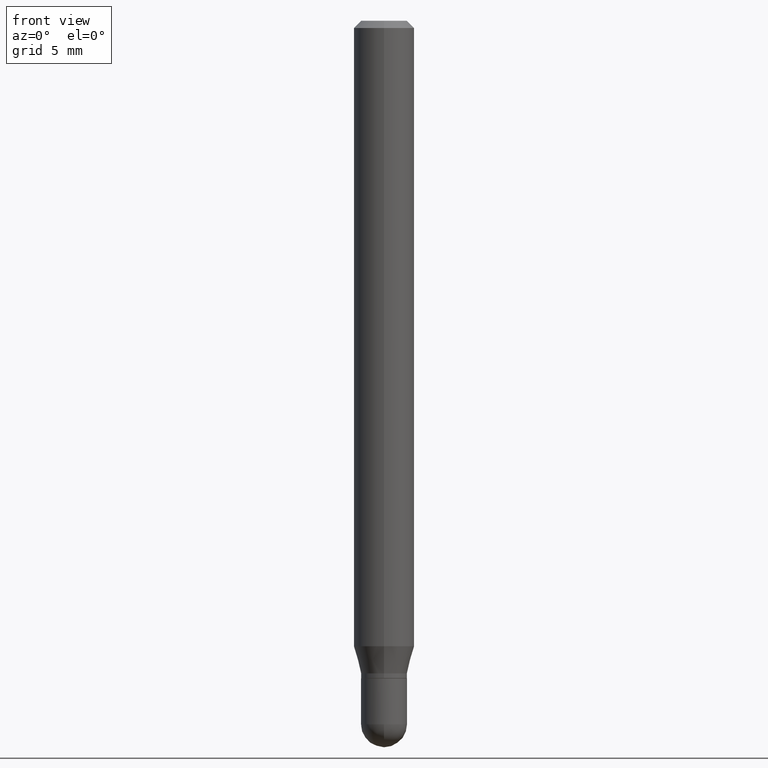
[diagram: clean part render]
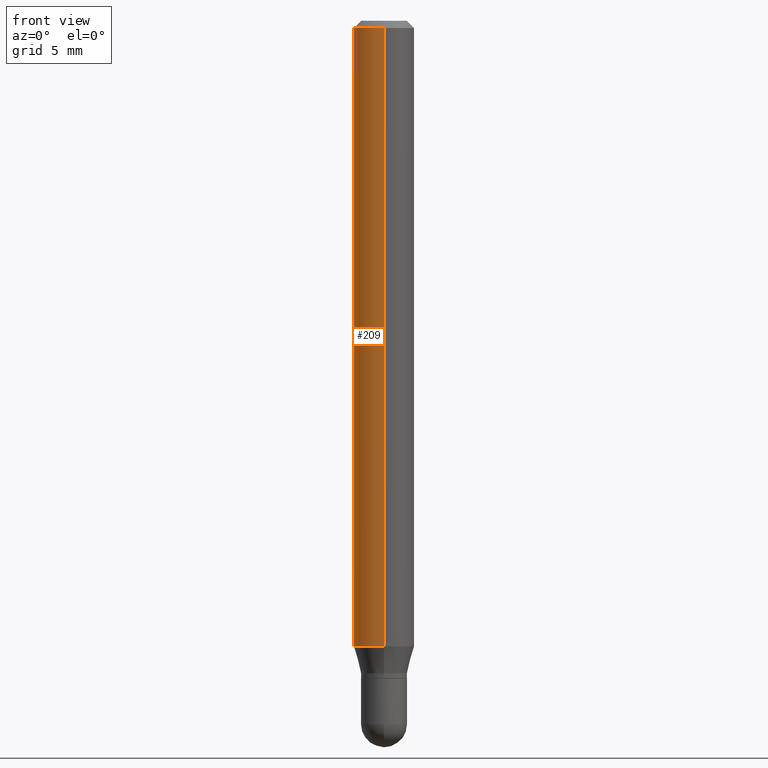
[diagram: same view with one face highlighted and labeled with its STEP entity id]
A machine part, front view. The second image highlights one B-rep face of the part: STEP entity #209.
In plain terms, the highlighted cylindrical surface (edge-blend (fillet) strip) has radius 1.5875 mm, axis along (-0, 0, 1).
Its self-contained STEP definition (entity closure, byte-faithful):
#34 = EDGE_CURVE ( 'NONE', #279, #310, #247, .T. ) ;
#35 = CARTESIAN_POINT ( 'NONE',  ( -4.364351673553598192E-16, -0.06250000000000446865, -1.291519237886466831 ) ) ;
#59 = ORIENTED_EDGE ( 'NONE', *, *, #401, .T. ) ;
#64 = CYLINDRICAL_SURFACE ( 'NONE', #402, 0.06250000000000000000 ) ;
#72 = CIRCLE ( 'NONE', #192, 0.06250000000000000000 ) ;
#75 = DIRECTION ( 'NONE',  ( -2.445492424054012945E-29, 3.491447516710668952E-15, 1.000000000000000000 ) ) ;
#120 = DIRECTION ( 'NONE',  ( -6.982962677686265922E-15, -1.000000000000000000, 4.370956789862821150E-15 ) ) ;
#146 = EDGE_LOOP ( 'NONE', ( #437, #59, #373, #306 ) ) ;
#170 = LINE ( 'NONE', #420, #456 ) ;
#172 = DIRECTION ( 'NONE',  ( -6.982962677686265922E-15, -1.000000000000000000, 3.483106191921935554E-15 ) ) ;
#192 = AXIS2_PLACEMENT_3D ( 'NONE', #218, #75, #120 ) ;
#204 = CARTESIAN_POINT ( 'NONE',  ( 4.440892098500943678E-16, 0.06249999999999995837, -0.01500000000000022669 ) ) ;
#209 = ADVANCED_FACE ( 'NONE', ( #423 ), #64, .T. ) ;
#214 = DIRECTION ( 'NONE',  ( -2.445492424054012945E-29, 3.491447516710668952E-15, 1.000000000000000000 ) ) ;
#217 = CARTESIAN_POINT ( 'NONE',  ( 0.000000000000000000, 0.000000000000000000, 0.000000000000000000 ) ) ;
#218 = CARTESIAN_POINT ( 'NONE',  ( 3.158400511771368099E-29, -4.509271635902760298E-15, -1.291519237886467275 ) ) ;
#223 = DIRECTION ( 'NONE',  ( -2.445492424054012945E-29, 3.491447516710668952E-15, 1.000000000000000000 ) ) ;
#235 = VERTEX_POINT ( 'NONE', #342 ) ;
#247 = CIRCLE ( 'NONE', #260, 0.06250000000000000000 ) ;
#258 = EDGE_CURVE ( 'NONE', #424, #310, #461, .T. ) ;
#260 = AXIS2_PLACEMENT_3D ( 'NONE', #436, #223, #172 ) ;
#273 = CARTESIAN_POINT ( 'NONE',  ( -4.364351673553916201E-16, -0.06250000000000000000, 2.182154697944168095E-16 ) ) ;
#279 = VERTEX_POINT ( 'NONE', #204 ) ;
#285 = CARTESIAN_POINT ( 'NONE',  ( -4.364351673553912750E-16, -0.06250000000000005551, -0.01499999999999979128 ) ) ;
#306 = ORIENTED_EDGE ( 'NONE', *, *, #34, .F. ) ;
#310 = VERTEX_POINT ( 'NONE', #285 ) ;
#342 = CARTESIAN_POINT ( 'NONE',  ( 4.440892098500942692E-16, 0.06249999999999551747, -1.291519237886467497 ) ) ;
#373 = ORIENTED_EDGE ( 'NONE', *, *, #258, .T. ) ;
#383 = DIRECTION ( 'NONE',  ( -2.445492424054012945E-29, 3.491447516710668952E-15, 1.000000000000000000 ) ) ;
#390 = DIRECTION ( 'NONE',  ( -6.982962677686265922E-15, -1.000000000000000000, 3.491447516710668952E-15 ) ) ;
#401 = EDGE_CURVE ( 'NONE', #235, #424, #72, .T. ) ;
#402 = AXIS2_PLACEMENT_3D ( 'NONE', #217, #383, #390 ) ;
#420 = CARTESIAN_POINT ( 'NONE',  ( 4.440892098500625669E-16, 0.06250000000000000000, -2.182154697944168095E-16 ) ) ;
#423 = FACE_OUTER_BOUND ( 'NONE', #146, .T. ) ;
#424 = VERTEX_POINT ( 'NONE', #35 ) ;
#436 = CARTESIAN_POINT ( 'NONE',  ( 3.668238636081021817E-31, -5.237171275066006657E-17, -0.01500000000000000812 ) ) ;
#437 = ORIENTED_EDGE ( 'NONE', *, *, #485, .F. ) ;
#456 = VECTOR ( 'NONE', #214, 39.37007874015748143 ) ;
#461 = LINE ( 'NONE', #273, #510 ) ;
#485 = EDGE_CURVE ( 'NONE', #235, #279, #170, .T. ) ;
#504 = DIRECTION ( 'NONE',  ( -2.445492424054012945E-29, 3.491447516710668952E-15, 1.000000000000000000 ) ) ;
#510 = VECTOR ( 'NONE', #504, 39.37007874015748143 ) ;